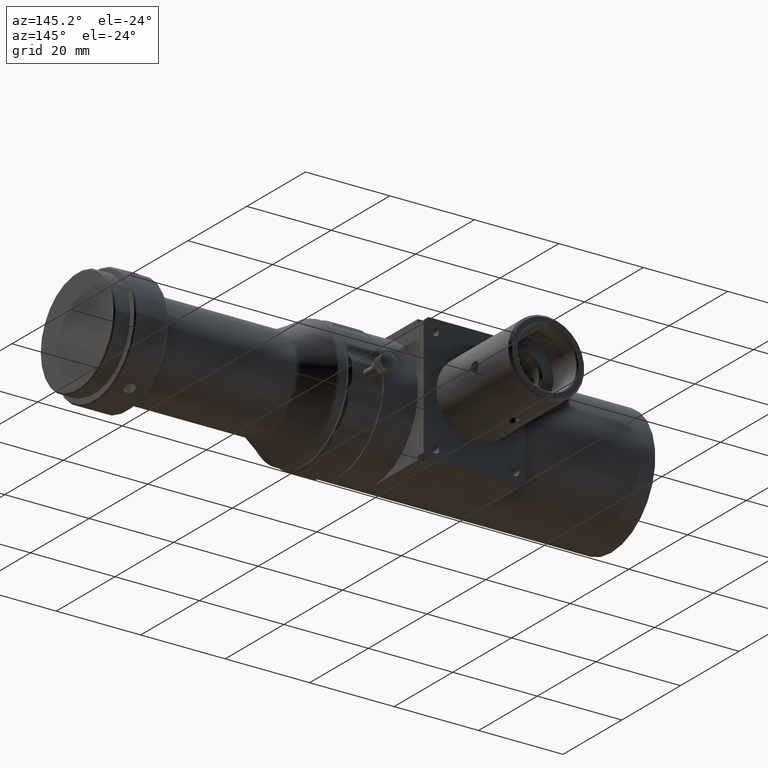
[diagram: clean part render]
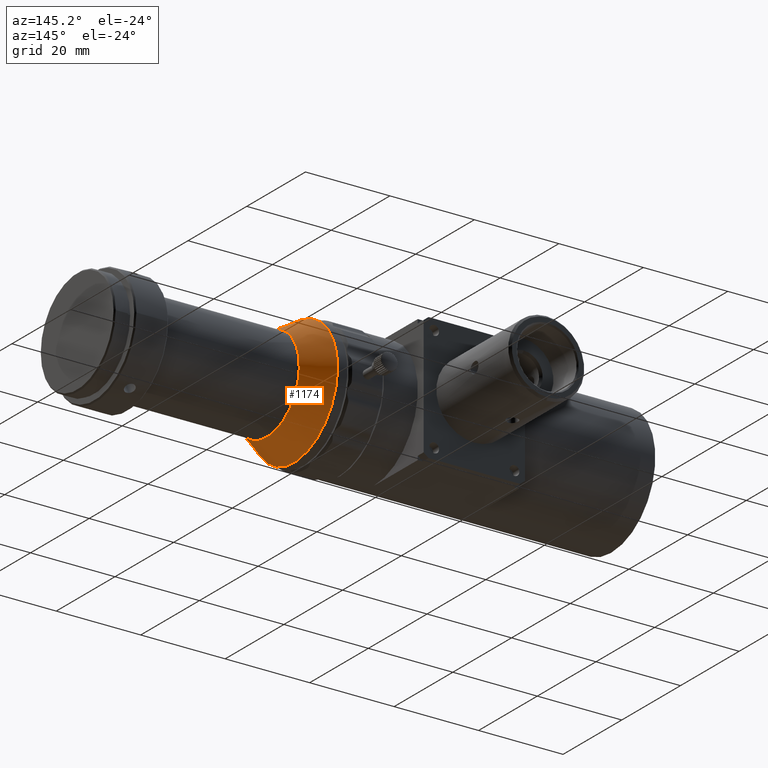
[diagram: same view with one face highlighted and labeled with its STEP entity id]
A machine part, auxiliary view. The second image highlights one B-rep face of the part: STEP entity #1174.
In plain terms, the highlighted conical surface has half-angle 30 deg.
Its self-contained STEP definition (entity closure, byte-faithful):
#241 = DIRECTION ( 'NONE',  ( -1.000000000000000000, 0.000000000000000000, 0.000000000000000000 ) ) ;
#865 = FACE_OUTER_BOUND ( 'NONE', #4487, .T. ) ;
#1174 = ADVANCED_FACE ( 'NONE', ( #2482, #865 ), #6745, .T. ) ;
#1287 = CARTESIAN_POINT ( 'NONE',  ( 19.31417755758686283, 2.311115933264683024E-30, 2.602085213965209064E-15 ) ) ;
#1867 = ORIENTED_EDGE ( 'NONE', *, *, #6619, .F. ) ;
#1891 = DIRECTION ( 'NONE',  ( -1.000000000000000000, 0.000000000000000000, 0.000000000000000000 ) ) ;
#2068 = CARTESIAN_POINT ( 'NONE',  ( 25.77827917272459857, -0.7699552415486979884, 11.10732007440072167 ) ) ;
#2482 = FACE_BOUND ( 'NONE', #3825, .T. ) ;
#2816 = CIRCLE ( 'NONE', #7242, 11.13397459621556251 ) ;
#3085 = CARTESIAN_POINT ( 'NONE',  ( 25.77827917272459857, 2.311115933264683024E-30, 2.602085213965209064E-15 ) ) ;
#3148 = CARTESIAN_POINT ( 'NONE',  ( 19.31417755758686283, 0.000000000000000000, 2.602085213965210642E-15 ) ) ;
#3233 = EDGE_CURVE ( 'NONE', #4688, #4688, #2816, .T. ) ;
#3350 = AXIS2_PLACEMENT_3D ( 'NONE', #1287, #4683, #6484 ) ;
#3369 = VERTEX_POINT ( 'NONE', #3782 ) ;
#3782 = CARTESIAN_POINT ( 'NONE',  ( 19.31417755758686283, -1.028040263764431250, 14.83043642385629468 ) ) ;
#3825 = EDGE_LOOP ( 'NONE', ( #6044 ) ) ;
#4487 = EDGE_LOOP ( 'NONE', ( #1867 ) ) ;
#4683 = DIRECTION ( 'NONE',  ( -1.000000000000000000, 0.000000000000000000, 0.000000000000000000 ) ) ;
#4688 = VERTEX_POINT ( 'NONE', #2068 ) ;
#4861 = DIRECTION ( 'NONE',  ( 0.000000000000000000, 0.000000000000000000, 1.000000000000000000 ) ) ;
#5735 = CIRCLE ( 'NONE', #3350, 14.86602540378443749 ) ;
#6044 = ORIENTED_EDGE ( 'NONE', *, *, #3233, .T. ) ;
#6380 = AXIS2_PLACEMENT_3D ( 'NONE', #3148, #241, #4861 ) ;
#6484 = DIRECTION ( 'NONE',  ( 0.000000000000000000, -0.06915367328127419722, 0.9976060191637312613 ) ) ;
#6619 = EDGE_CURVE ( 'NONE', #3369, #3369, #5735, .T. ) ;
#6745 = CONICAL_SURFACE ( 'NONE', #6380, 14.86602540378443393, 0.5235987755982995928 ) ;
#6935 = DIRECTION ( 'NONE',  ( 0.000000000000000000, -0.06915367328127421109, 0.9976060191637312613 ) ) ;
#7242 = AXIS2_PLACEMENT_3D ( 'NONE', #3085, #1891, #6935 ) ;